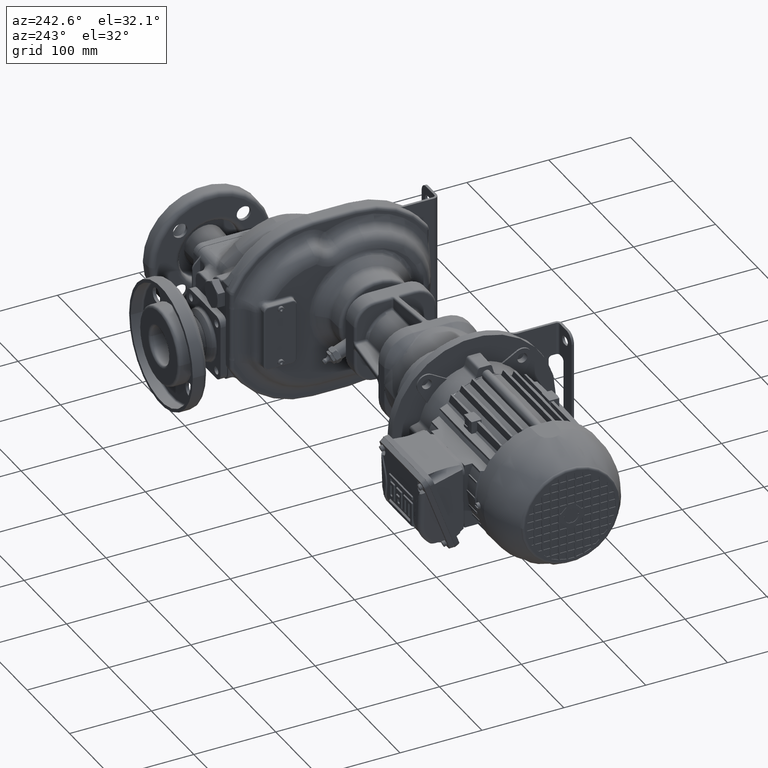
[diagram: clean part render]
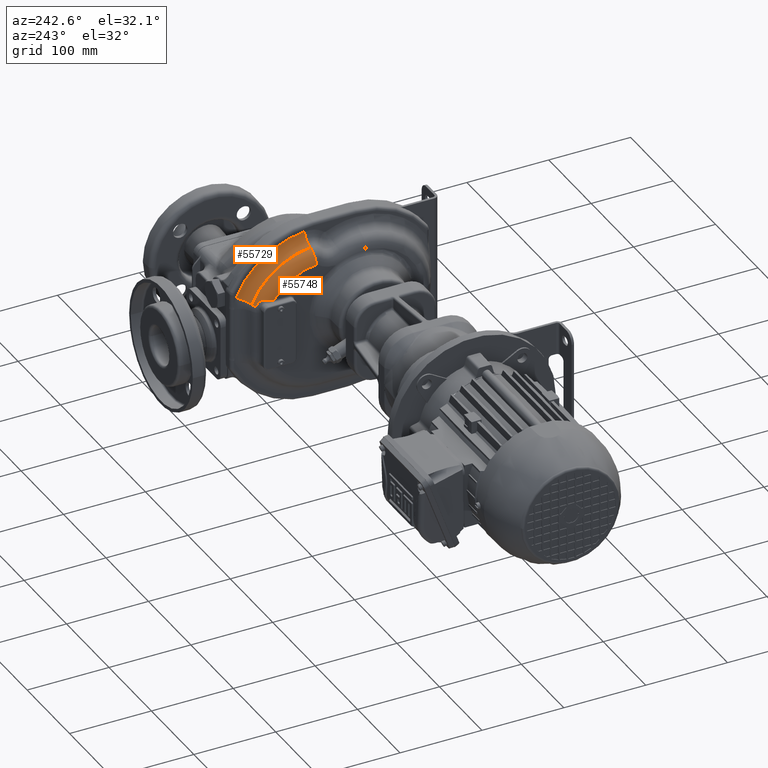
[diagram: same view with one multi-face feature highlighted, each face labeled with its STEP entity id]
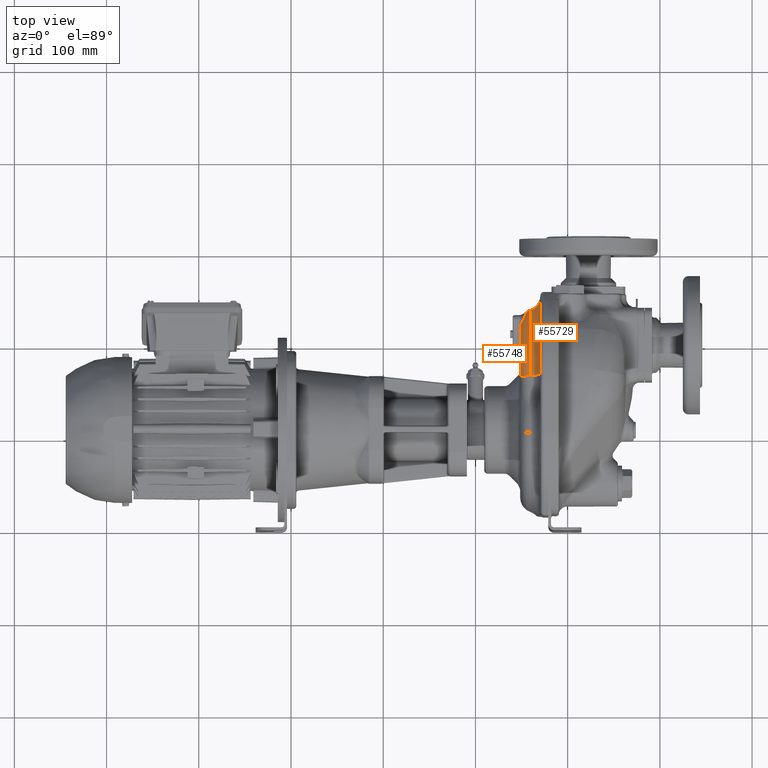
[diagram: same view with one multi-face feature highlighted, each face labeled with its STEP entity id]
A machine part, auxiliary view. The highlighted faces form ONE feature: a constant-radius fillet chain: 2 tangent blend faces with common blend radius 16.5 mm. The faces share edges in the B-rep.
A second angle (top view) of the same feature is appended — it is thin or edge-on in the first view.
Their STEP definitions:
[1] entity #55748 (Torus):
#7761=CARTESIAN_POINT('',(-4.016666666667E1,1.58E2,-9.E0));
#7762=DIRECTION('',(1.E0,0.E0,0.E0));
#7763=DIRECTION('',(0.E0,9.142857142857E-1,4.050699108217E-1));
#7764=AXIS2_PLACEMENT_3D('',#7761,#7762,#7763);
#7766=CARTESIAN_POINT('',(-3.45E1,1.659247761546E2,6.356857393459E1));
#7767=DIRECTION('',(0.E0,9.940900538984E-1,-1.085585774604E-1));
#7768=DIRECTION('',(-1.E0,0.E0,0.E0));
#7769=AXIS2_PLACEMENT_3D('',#7766,#7767,#7768);
#7771=CARTESIAN_POINT('',(-5.15E1,2.176335981121E2,3.310503504187E1));
#7772=CARTESIAN_POINT('',(-5.149999999777E1,2.178170349066E2,3.309524414788E1));
#7773=CARTESIAN_POINT('',(-5.149637039765E1,2.181928570045E2,3.308015459893E1));
#7774=CARTESIAN_POINT('',(-5.147707504026E1,2.187883859522E2,3.307466684182E1));
#7775=CARTESIAN_POINT('',(-5.144157520884E1,2.194013144683E2,3.308633565404E1));
#7776=CARTESIAN_POINT('',(-5.138835968620E1,2.200235659299E2,3.311443011023E1));
#7777=CARTESIAN_POINT('',(-5.131584068785E1,2.206534996989E2,3.315783264494E1));
#7778=CARTESIAN_POINT('',(-5.122279352473E1,2.212879754575E2,3.321522040361E1));
#7779=CARTESIAN_POINT('',(-5.110825136009E1,2.219244782025E2,3.328510272153E1));
#7780=CARTESIAN_POINT('',(-5.097152111756E1,2.225606018031E2,3.336589628405E1));
#7781=CARTESIAN_POINT('',(-5.081215300480E1,2.231942092724E2,3.345598052665E1));
#7782=CARTESIAN_POINT('',(-5.062991344565E1,2.238233918496E2,3.355374618045E1));
#7783=CARTESIAN_POINT('',(-5.042475400705E1,2.244464661161E2,3.365763130426E1));
#7784=CARTESIAN_POINT('',(-5.019677539481E1,2.250619643837E2,3.376615001804E1));
#7785=CARTESIAN_POINT('',(-4.994620790677E1,2.256685915511E2,3.387790408489E1));
#7786=CARTESIAN_POINT('',(-4.967335957384E1,2.262652507474E2,3.399160437044E1));
#7787=CARTESIAN_POINT('',(-4.947691429077E1,2.266556422151E2,3.406789176919E1));
#7788=CARTESIAN_POINT('',(-4.937509320935E1,2.268489194600E2,3.410599004805E1));
#7790=CARTESIAN_POINT('',(-4.937509320935E1,2.268489194600E2,3.410599004805E1));
#7791=CARTESIAN_POINT('',(-4.932704998381E1,2.269401153284E2,3.412396631138E1));
#7792=CARTESIAN_POINT('',(-4.922960458846E1,2.271239417329E2,3.415541653942E1));
#7793=CARTESIAN_POINT('',(-4.907940139293E1,2.274041252647E2,3.418880271629E1));
#7794=CARTESIAN_POINT('',(-4.892550020590E1,2.276883800693E2,3.420801779690E1));
#7795=CARTESIAN_POINT('',(-4.876821512494E1,2.279764309238E2,3.421270224616E1));
#7796=CARTESIAN_POINT('',(-4.860793449936E1,2.282679192555E2,3.420249759489E1));
#7797=CARTESIAN_POINT('',(-4.844506231811E1,2.285625126067E2,3.417705323508E1));
#7798=CARTESIAN_POINT('',(-4.828017113188E1,2.288596336708E2,3.413606644708E1));
#7799=CARTESIAN_POINT('',(-4.811366188473E1,2.291590678039E2,3.407921507846E1));
#7800=CARTESIAN_POINT('',(-4.794617624252E1,2.294602204151E2,3.400625653629E1));
#7801=CARTESIAN_POINT('',(-4.777833124417E1,2.297625959742E2,3.391698022511E1));
#7802=CARTESIAN_POINT('',(-4.761080881479E1,2.300656319626E2,3.381123553262E1));
#7803=CARTESIAN_POINT('',(-4.744432677927E1,2.303687461730E2,3.368893442676E1));
#7804=CARTESIAN_POINT('',(-4.727963772504E1,2.306713317616E2,3.355005832354E1));
#7805=CARTESIAN_POINT('',(-4.711751892783E1,2.309727671950E2,3.339466130641E1));
#7806=CARTESIAN_POINT('',(-4.695876278393E1,2.312724239488E2,3.322287115942E1));
#7807=CARTESIAN_POINT('',(-4.680416543554E1,2.315696766604E2,3.303488691367E1));
#7808=CARTESIAN_POINT('',(-4.665451520153E1,2.318639135702E2,3.283097269245E1));
#7809=CARTESIAN_POINT('',(-4.651058086086E1,2.321545470537E2,3.261144864475E1));
#7810=CARTESIAN_POINT('',(-4.637310065315E1,2.324410245338E2,3.237667706126E1));
#7811=CARTESIAN_POINT('',(-4.624277352564E1,2.327228366825E2,3.212704685180E1));
#7812=CARTESIAN_POINT('',(-4.612025161194E1,2.329995259914E2,3.186295378631E1));
#7813=CARTESIAN_POINT('',(-4.600613658836E1,2.332706905371E2,3.158478136241E1));
#7814=CARTESIAN_POINT('',(-4.590097825998E1,2.335359864307E2,3.129288019686E1));
#7815=CARTESIAN_POINT('',(-4.580527798647E1,2.337951235920E2,3.098755153215E1));
#7816=CARTESIAN_POINT('',(-4.571949151451E1,2.340478650628E2,3.066902676022E1));
#7817=CARTESIAN_POINT('',(-4.564403685315E1,2.342940199360E2,3.033745039320E1));
#7818=CARTESIAN_POINT('',(-4.557930452924E1,2.345334278802E2,2.999287663466E1));
#7819=CARTESIAN_POINT('',(-4.552566582710E1,2.347659565299E2,2.963524553857E1));
#7820=CARTESIAN_POINT('',(-4.548349030954E1,2.349914504830E2,2.926443891775E1));
#7821=CARTESIAN_POINT('',(-4.545314105524E1,2.352097811116E2,2.888017816495E1));
#7822=CARTESIAN_POINT('',(-4.543499789804E1,2.354207619975E2,2.848213533264E1));
#7823=CARTESIAN_POINT('',(-4.542945621806E1,2.356241309734E2,2.806996240851E1));
#7824=CARTESIAN_POINT('',(-4.543692372867E1,2.358195695416E2,2.764324356117E1));
#7825=CARTESIAN_POINT('',(-4.545781840680E1,2.360066419034E2,2.720161088003E1));
#7826=CARTESIAN_POINT('',(-4.549254852352E1,2.361847783498E2,2.674480879719E1));
#7827=CARTESIAN_POINT('',(-4.554150019827E1,2.363532808538E2,2.627269242574E1));
#7828=CARTESIAN_POINT('',(-4.558380168829E1,2.364585623592E2,2.594801170141E1));
#7829=CARTESIAN_POINT('',(-4.560741667848E1,2.365093020589E2,2.578317060714E1));
#7943=CARTESIAN_POINT('',(-5.15E1,2.176335981121E2,3.310503504187E1));
#7945=CARTESIAN_POINT('',(-5.15E1,1.58E2,-9.E0));
#7946=DIRECTION('',(-1.E0,0.E0,0.E0));
#7947=DIRECTION('',(0.E0,1.085585774604E-1,9.940900538984E-1));
#7948=AXIS2_PLACEMENT_3D('',#7945,#7946,#7947);
#8156=CARTESIAN_POINT('',(-3.45E1,2.247428571429E2,2.057010348998E1));
#8157=DIRECTION('',(0.E0,4.050699108217E-1,-9.142857142857E-1));
#8158=DIRECTION('',(-6.533774516752E-1,6.921438185916E-1,3.066510068920E-1));
#8159=AXIS2_PLACEMENT_3D('',#8156,#8157,#8158);
#39984=CARTESIAN_POINT('',(-5.15E1,1.659247761546E2,6.356857393459E1));
#39985=VERTEX_POINT('',#39984);
#40004=CARTESIAN_POINT('',(-4.016666666667E1,2.393968033892E2,
2.706246425470E1));
#40005=VERTEX_POINT('',#40004);
#40006=CARTESIAN_POINT('',(-4.016666666667E1,1.676647262969E2,
7.950160448094E1));
#40007=VERTEX_POINT('',#40006);
#40084=VERTEX_POINT('',#7943);
#40086=VERTEX_POINT('',#7788);
#40088=VERTEX_POINT('',#7829);
#55730=CARTESIAN_POINT('',(-3.45E1,1.58E2,-9.E0));
#55731=DIRECTION('',(-1.E0,0.E0,0.E0));
#55732=DIRECTION('',(0.E0,1.083887322774E-1,9.941085869840E-1));
#55733=AXIS2_PLACEMENT_3D('',#55730,#55731,#55732);
#55734=TOROIDAL_SURFACE('',#55733,7.3E1,1.7E1);
#55735=ORIENTED_EDGE('',*,*,#55721,.T.);
#55737=ORIENTED_EDGE('',*,*,#55736,.F.);
#55739=ORIENTED_EDGE('',*,*,#55738,.T.);
#55741=ORIENTED_EDGE('',*,*,#55740,.T.);
#55743=ORIENTED_EDGE('',*,*,#55742,.T.);
#55745=ORIENTED_EDGE('',*,*,#55744,.T.);
#55746=EDGE_LOOP('',(#55735,#55737,#55739,#55741,#55743,#55745));
#55747=FACE_OUTER_BOUND('',#55746,.F.);
#55748=ADVANCED_FACE('',(#55747),#55734,.T.);
#7765=CIRCLE('',#7764,8.902775370690E1);
#7770=CIRCLE('',#7769,1.7E1);
#7789=B_SPLINE_CURVE_WITH_KNOTS('',3,(#7771,#7772,#7773,#7774,#7775,#7776,#7777,
#7778,#7779,#7780,#7781,#7782,#7783,#7784,#7785,#7786,#7787,#7788),
.UNSPECIFIED.,.F.,.F.,(4,1,1,1,1,1,1,1,1,1,1,1,1,1,1,4),(0.E0,6.666666666667E-2,
1.333333333333E-1,2.E-1,2.666666666667E-1,3.333333333333E-1,4.E-1,
4.666666666667E-1,5.333333333333E-1,6.E-1,6.666666666667E-1,7.333333333333E-1,
8.E-1,8.666666666667E-1,9.333333333333E-1,1.E0),.UNSPECIFIED.);
#7830=B_SPLINE_CURVE_WITH_KNOTS('',3,(#7790,#7791,#7792,#7793,#7794,#7795,#7796,
#7797,#7798,#7799,#7800,#7801,#7802,#7803,#7804,#7805,#7806,#7807,#7808,#7809,
#7810,#7811,#7812,#7813,#7814,#7815,#7816,#7817,#7818,#7819,#7820,#7821,#7822,
#7823,#7824,#7825,#7826,#7827,#7828,#7829),.UNSPECIFIED.,.F.,.F.,(4,1,1,1,1,1,1,
1,1,1,1,1,1,1,1,1,1,1,1,1,1,1,1,1,1,1,1,1,1,1,1,1,1,1,1,1,1,4),(0.E0,
2.702702702703E-2,5.405405405405E-2,8.108108108108E-2,1.081081081081E-1,
1.351351351351E-1,1.621621621622E-1,1.891891891892E-1,2.162162162162E-1,
2.432432432432E-1,2.702702702703E-1,2.972972972973E-1,3.243243243243E-1,
3.513513513514E-1,3.783783783784E-1,4.054054054054E-1,4.324324324324E-1,
4.594594594595E-1,4.864864864865E-1,5.135135135135E-1,5.405405405405E-1,
5.675675675676E-1,5.945945945946E-1,6.216216216216E-1,6.486486486486E-1,
6.756756756757E-1,7.027027027027E-1,7.297297297297E-1,7.567567567568E-1,
7.837837837838E-1,8.108108108108E-1,8.378378378378E-1,8.648648648649E-1,
8.918918918919E-1,9.189189189189E-1,9.459459459459E-1,9.729729729730E-1,1.E0),
.UNSPECIFIED.);
#7949=CIRCLE('',#7948,7.3E1);
#8160=CIRCLE('',#8159,1.7E1);
#55721=EDGE_CURVE('',#40005,#40007,#7765,.T.);
#55736=EDGE_CURVE('',#39985,#40007,#7770,.T.);
#55738=EDGE_CURVE('',#39985,#40084,#7949,.T.);
#55740=EDGE_CURVE('',#40084,#40086,#7789,.T.);
#55742=EDGE_CURVE('',#40086,#40088,#7830,.T.);
#55744=EDGE_CURVE('',#40088,#40005,#8160,.T.);
[2] entity #55729 (Torus):
#7468=CARTESIAN_POINT('',(-2.95E1,1.58E2,-9.E0));
#7469=DIRECTION('',(1.E0,0.E0,0.E0));
#7470=DIRECTION('',(0.E0,9.142857142857E-1,4.050699108217E-1));
#7471=AXIS2_PLACEMENT_3D('',#7468,#7469,#7470);
#7756=CARTESIAN_POINT('',(-4.55E1,2.531887527974E2,3.317292144503E1));
#7757=DIRECTION('',(0.E0,-4.050699108217E-1,9.142857142857E-1));
#7758=DIRECTION('',(3.333333333333E-1,-8.619968380179E-1,-3.819035743955E-1));
#7759=AXIS2_PLACEMENT_3D('',#7756,#7757,#7758);
#7761=CARTESIAN_POINT('',(-4.016666666667E1,1.58E2,-9.E0));
#7762=DIRECTION('',(1.E0,0.E0,0.E0));
#7763=DIRECTION('',(0.E0,9.142857142857E-1,4.050699108217E-1));
#7764=AXIS2_PLACEMENT_3D('',#7761,#7762,#7763);
#7841=CARTESIAN_POINT('',(-4.55E1,1.693023264308E2,9.449739793634E1));
#7842=DIRECTION('',(0.E0,-9.940900538984E-1,1.085585774604E-1));
#7843=DIRECTION('',(3.333333333333E-1,-1.023500083709E-1,-9.372370909622E-1));
#7844=AXIS2_PLACEMENT_3D('',#7841,#7842,#7843);
#40004=CARTESIAN_POINT('',(-4.016666666667E1,2.393968033892E2,
2.706246425470E1));
#40005=VERTEX_POINT('',#40004);
#40006=CARTESIAN_POINT('',(-4.016666666667E1,1.676647262969E2,
7.950160448094E1));
#40007=VERTEX_POINT('',#40006);
#40008=CARTESIAN_POINT('',(-2.95E1,2.531887527974E2,3.317292144503E1));
#40009=CARTESIAN_POINT('',(-2.95E1,1.693023264308E2,9.449739793634E1));
#40010=VERTEX_POINT('',#40008);
#40011=VERTEX_POINT('',#40009);
#55716=CARTESIAN_POINT('',(-4.55E1,1.58E2,-9.E0));
#55717=DIRECTION('',(-1.E0,0.E0,0.E0));
#55718=DIRECTION('',(0.E0,9.143561425004E-1,4.049109095491E-1));
#55719=AXIS2_PLACEMENT_3D('',#55716,#55717,#55718);
#55720=TOROIDAL_SURFACE('',#55719,1.041126983722E2,1.6E1);
#55722=ORIENTED_EDGE('',*,*,#55721,.F.);
#55723=ORIENTED_EDGE('',*,*,#55652,.T.);
#55724=ORIENTED_EDGE('',*,*,#54944,.T.);
#55726=ORIENTED_EDGE('',*,*,#55725,.F.);
#55727=EDGE_LOOP('',(#55722,#55723,#55724,#55726));
#55728=FACE_OUTER_BOUND('',#55727,.F.);
#55729=ADVANCED_FACE('',(#55728),#55720,.F.);
#7472=CIRCLE('',#7471,1.041126983722E2);
#7760=CIRCLE('',#7759,1.6E1);
#7765=CIRCLE('',#7764,8.902775370690E1);
#7845=CIRCLE('',#7844,1.6E1);
#54944=EDGE_CURVE('',#40010,#40011,#7472,.T.);
#55652=EDGE_CURVE('',#40005,#40010,#7760,.T.);
#55721=EDGE_CURVE('',#40005,#40007,#7765,.T.);
#55725=EDGE_CURVE('',#40007,#40011,#7845,.T.);